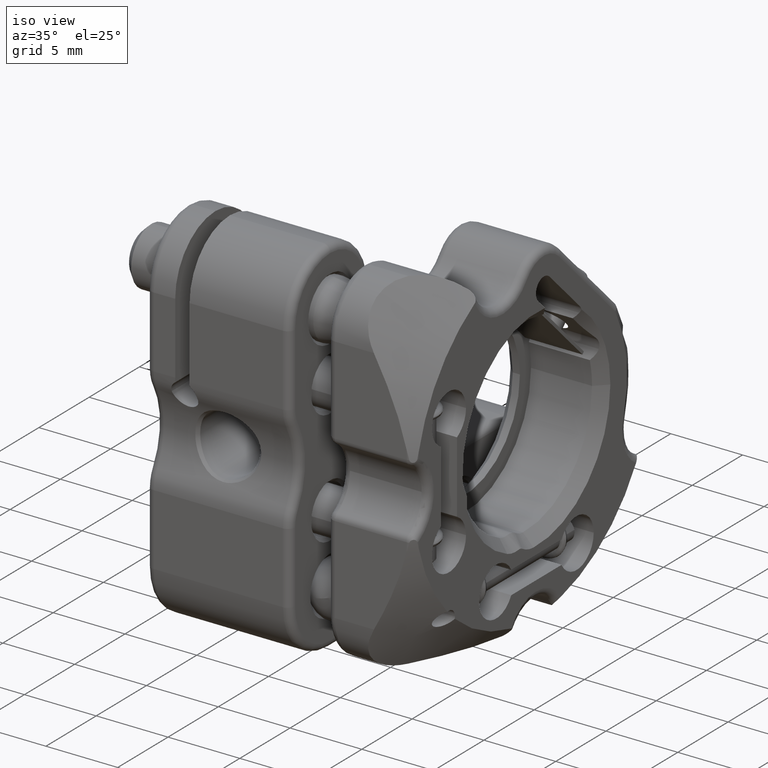
[diagram: clean part render]
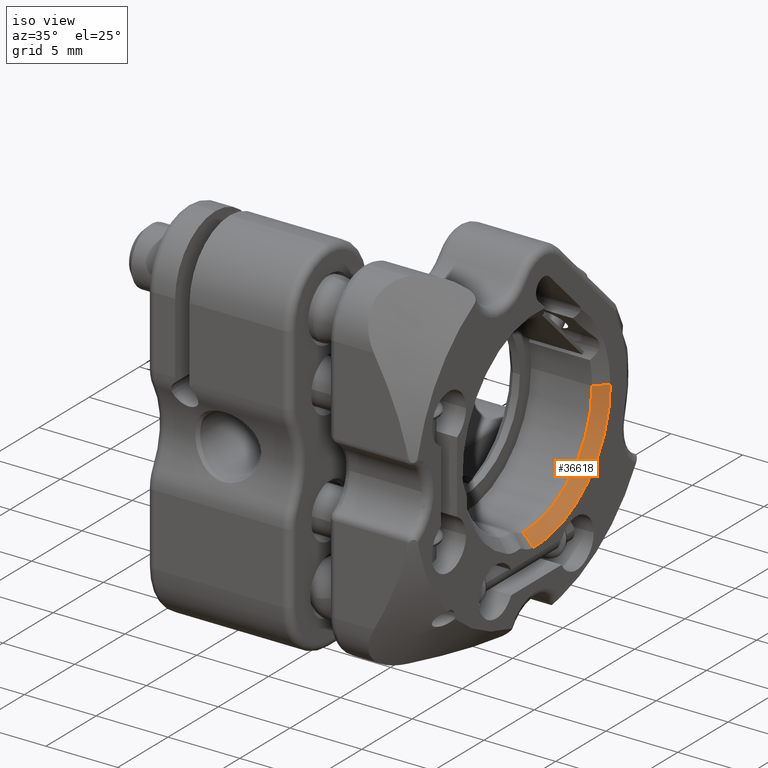
[diagram: same view with one face highlighted and labeled with its STEP entity id]
A machine part, iso view. The second image highlights one B-rep face of the part: STEP entity #36618.
In plain terms, the highlighted conical surface has half-angle 45 deg.
Its self-contained STEP definition (entity closure, byte-faithful):
#657 = CARTESIAN_POINT ( 'NONE',  ( -0.2360389693210798168, 20.05000000000000426, 5.605250869737580466 ) ) ;
#1326 = AXIS2_PLACEMENT_3D ( 'NONE', #28436, #38289, #25375 ) ;
#2924 = CONICAL_SURFACE ( 'NONE', #34606, 6.600000000000003197, 0.7853981633974492782 ) ;
#3403 = ORIENTED_EDGE ( 'NONE', *, *, #35608, .F. ) ;
#4057 = EDGE_CURVE ( 'NONE', #9867, #36711, #14605, .T. ) ;
#7190 = CARTESIAN_POINT ( 'NONE',  ( -0.9860389693210874773, 12.69999999999999041, 5.605250869737581354 ) ) ;
#8559 = CARTESIAN_POINT ( 'NONE',  ( -0.9860389693210874773, 12.69999999999999041, 5.605250869737581354 ) ) ;
#8984 = CARTESIAN_POINT ( 'NONE',  ( -0.9860389693210874773, 12.42991024216168228, -0.9892204148091088278 ) ) ;
#9867 = VERTEX_POINT ( 'NONE', #16539 ) ;
#10108 = DIRECTION ( 'NONE',  ( 1.000000000000000000, -4.732321137588042523E-23, 5.194348294811429819E-23 ) ) ;
#10352 = EDGE_CURVE ( 'NONE', #39000, #9867, #13466, .T. ) ;
#12874 = FACE_OUTER_BOUND ( 'NONE', #18421, .T. ) ;
#13436 = CIRCLE ( 'NONE', #18503, 6.600000000000002309 ) ;
#13466 = CIRCLE ( 'NONE', #1326, 7.350000000000012079 ) ;
#14605 = LINE ( 'NONE', #39407, #18757 ) ;
#14987 = DIRECTION ( 'NONE',  ( 0.7071067811865466846, 0.7071067811865483499, -4.906535260427899321E-17 ) ) ;
#16539 = CARTESIAN_POINT ( 'NONE',  ( -0.2360389693210798168, 12.39921822422551045, -1.738592151689423826 ) ) ;
#16812 = DIRECTION ( 'NONE',  ( 0.0000000000000000000, -1.000000000000000000, 1.314184451497580766E-16 ) ) ;
#18421 = EDGE_LOOP ( 'NONE', ( #32811, #3403, #33378, #31688 ) ) ;
#18503 = AXIS2_PLACEMENT_3D ( 'NONE', #7190, #10108, #16812 ) ;
#18757 = VECTOR ( 'NONE', #28574, 1000.000000000000000 ) ;
#19234 = VERTEX_POINT ( 'NONE', #42512 ) ;
#24699 = CARTESIAN_POINT ( 'NONE',  ( -0.9860389693210874773, 19.29999999999999361, 5.605250869737580466 ) ) ;
#25375 = DIRECTION ( 'NONE',  ( 0.0000000000000000000, -1.000000000000000000, 1.180083997263132245E-16 ) ) ;
#25519 = LINE ( 'NONE', #24699, #38015 ) ;
#28436 = CARTESIAN_POINT ( 'NONE',  ( -0.2360389693210798168, 12.69999999999999041, 5.605250869737581354 ) ) ;
#28574 = DIRECTION ( 'NONE',  ( -0.7071067811865465735, 0.02893671201462143933, 0.7065144490368079344 ) ) ;
#31688 = ORIENTED_EDGE ( 'NONE', *, *, #10352, .F. ) ;
#32176 = DIRECTION ( 'NONE',  ( 0.0000000000000000000, 1.000000000000000000, -1.314184451497580520E-16 ) ) ;
#32811 = ORIENTED_EDGE ( 'NONE', *, *, #43068, .F. ) ;
#33378 = ORIENTED_EDGE ( 'NONE', *, *, #4057, .F. ) ;
#34606 = AXIS2_PLACEMENT_3D ( 'NONE', #8559, #41810, #32176 ) ;
#35608 = EDGE_CURVE ( 'NONE', #36711, #19234, #13436, .T. ) ;
#36618 = ADVANCED_FACE ( 'NONE', ( #12874 ), #2924, .F. ) ;
#36711 = VERTEX_POINT ( 'NONE', #8984 ) ;
#38015 = VECTOR ( 'NONE', #14987, 1000.000000000000000 ) ;
#38289 = DIRECTION ( 'NONE',  ( -1.000000000000000000, 4.732321137588042523E-23, -5.194348294811429819E-23 ) ) ;
#39000 = VERTEX_POINT ( 'NONE', #657 ) ;
#39407 = CARTESIAN_POINT ( 'NONE',  ( -0.2360389693210798168, 12.39921822422551045, -1.738592151689423826 ) ) ;
#41810 = DIRECTION ( 'NONE',  ( 1.000000000000000000, -4.732321137588042523E-23, 5.194348294811429819E-23 ) ) ;
#42512 = CARTESIAN_POINT ( 'NONE',  ( -0.9860389693210874773, 19.29999999999999005, 5.605250869737580466 ) ) ;
#43068 = EDGE_CURVE ( 'NONE', #19234, #39000, #25519, .T. ) ;